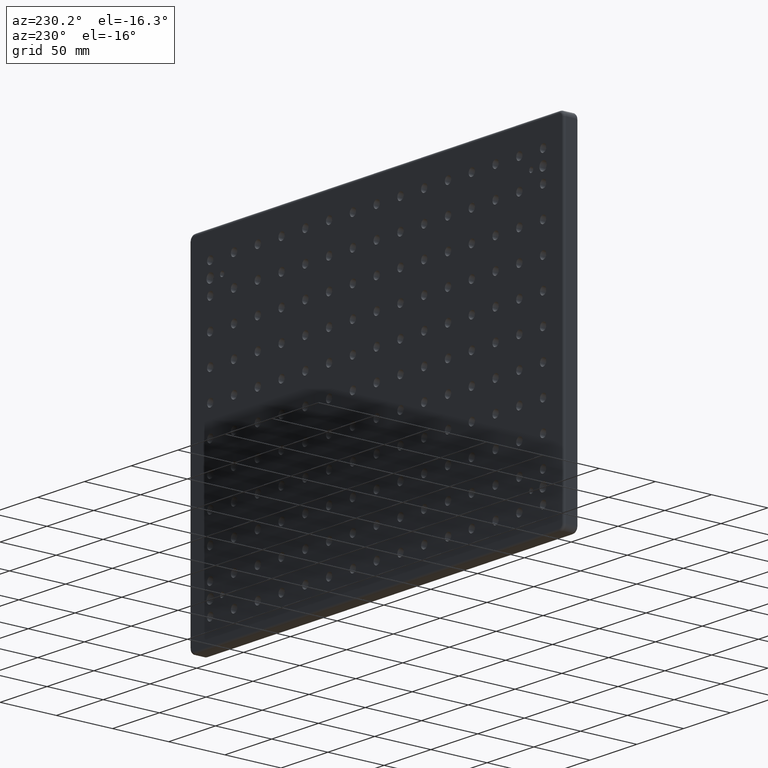
[diagram: clean part render]
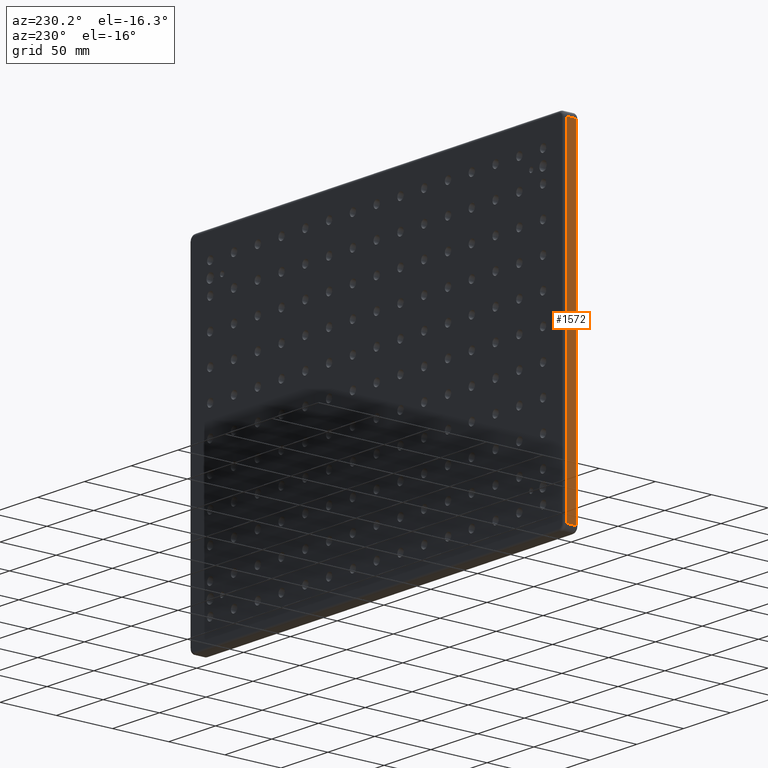
[diagram: same view with one face highlighted and labeled with its STEP entity id]
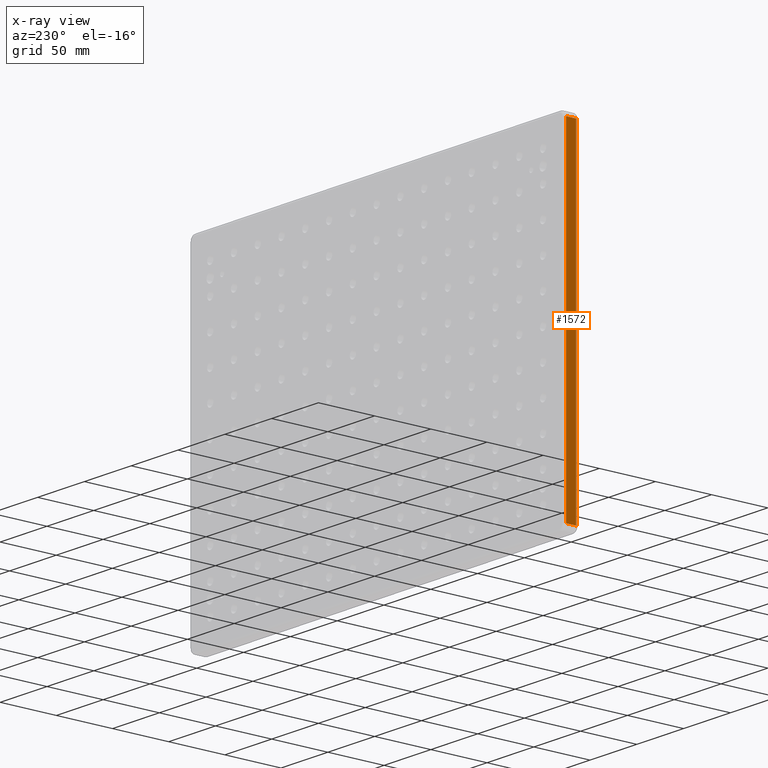
[diagram: x-ray of the same camera — body ghosted, the highlighted face saturated]
A machine part, auxiliary view. The second image highlights one B-rep face of the part: STEP entity #1572.
The next image is the same camera in x-ray: the body ghosted, the highlighted face saturated — about 0% of this face is hidden behind the body in this view.
In plain terms, the highlighted planar face has unit normal (1, -0, 0).
Its self-contained STEP definition (entity closure, byte-faithful):
#119 = CARTESIAN_POINT ( 'NONE',  ( -200.0000000000000000, 6.500000000000000000, 145.0000000000000000 ) ) ;
#802 = VERTEX_POINT ( 'NONE', #3727 ) ;
#910 = ORIENTED_EDGE ( 'NONE', *, *, #5310, .T. ) ;
#1073 = VECTOR ( 'NONE', #1793, 1000.000000000000000 ) ;
#1200 = DIRECTION ( 'NONE',  ( -0.0000000000000000000, -0.0000000000000000000, -1.000000000000000000 ) ) ;
#1572 = ADVANCED_FACE ( 'NONE', ( #3509 ), #5119, .F. ) ;
#1730 = VECTOR ( 'NONE', #11714, 1000.000000000000000 ) ;
#1793 = DIRECTION ( 'NONE',  ( -0.0000000000000000000, -1.000000000000000000, 0.0000000000000000000 ) ) ;
#2727 = EDGE_CURVE ( 'NONE', #6044, #13519, #4454, .T. ) ;
#3509 = FACE_OUTER_BOUND ( 'NONE', #12007, .T. ) ;
#3727 = CARTESIAN_POINT ( 'NONE',  ( -200.0000000000000000, -4.500000000000000000, -144.9999999999999400 ) ) ;
#3746 = ORIENTED_EDGE ( 'NONE', *, *, #2727, .T. ) ;
#3974 = DIRECTION ( 'NONE',  ( 0.0000000000000000000, 0.0000000000000000000, -1.000000000000000000 ) ) ;
#4304 = CARTESIAN_POINT ( 'NONE',  ( -200.0000000000000000, -4.500000000000000000, 145.0000000000000000 ) ) ;
#4314 = ORIENTED_EDGE ( 'NONE', *, *, #10532, .T. ) ;
#4333 = CARTESIAN_POINT ( 'NONE',  ( -200.0000000000000000, 4.500000000000000000, 150.0000000000000000 ) ) ;
#4454 = LINE ( 'NONE', #4333, #6286 ) ;
#5119 = PLANE ( 'NONE',  #9772 ) ;
#5260 = DIRECTION ( 'NONE',  ( 1.000000000000000000, -0.0000000000000000000, 0.0000000000000000000 ) ) ;
#5310 = EDGE_CURVE ( 'NONE', #802, #6430, #13477, .T. ) ;
#5389 = EDGE_CURVE ( 'NONE', #6430, #6044, #13144, .T. ) ;
#5749 = CARTESIAN_POINT ( 'NONE',  ( -200.0000000000000000, 4.500000000000000000, -144.9999999999999400 ) ) ;
#6044 = VERTEX_POINT ( 'NONE', #13465 ) ;
#6286 = VECTOR ( 'NONE', #1200, 1000.000000000000000 ) ;
#6430 = VERTEX_POINT ( 'NONE', #4304 ) ;
#7401 = VECTOR ( 'NONE', #11949, 1000.000000000000000 ) ;
#9251 = LINE ( 'NONE', #12485, #1073 ) ;
#9772 = AXIS2_PLACEMENT_3D ( 'NONE', #10623, #5260, #3974 ) ;
#10333 = ORIENTED_EDGE ( 'NONE', *, *, #5389, .T. ) ;
#10532 = EDGE_CURVE ( 'NONE', #13519, #802, #9251, .T. ) ;
#10623 = CARTESIAN_POINT ( 'NONE',  ( -200.0000000000000000, 6.500000000000000000, 150.0000000000000000 ) ) ;
#11714 = DIRECTION ( 'NONE',  ( -0.0000000000000000000, 0.0000000000000000000, 1.000000000000000000 ) ) ;
#11949 = DIRECTION ( 'NONE',  ( 0.0000000000000000000, 1.000000000000000000, -0.0000000000000000000 ) ) ;
#12007 = EDGE_LOOP ( 'NONE', ( #4314, #910, #10333, #3746 ) ) ;
#12485 = CARTESIAN_POINT ( 'NONE',  ( -200.0000000000000000, 6.500000000000000000, -144.9999999999999400 ) ) ;
#13144 = LINE ( 'NONE', #119, #7401 ) ;
#13465 = CARTESIAN_POINT ( 'NONE',  ( -200.0000000000000000, 4.500000000000000000, 145.0000000000000000 ) ) ;
#13477 = LINE ( 'NONE', #13793, #1730 ) ;
#13519 = VERTEX_POINT ( 'NONE', #5749 ) ;
#13793 = CARTESIAN_POINT ( 'NONE',  ( -200.0000000000000000, -4.500000000000000000, 145.0000000000000000 ) ) ;